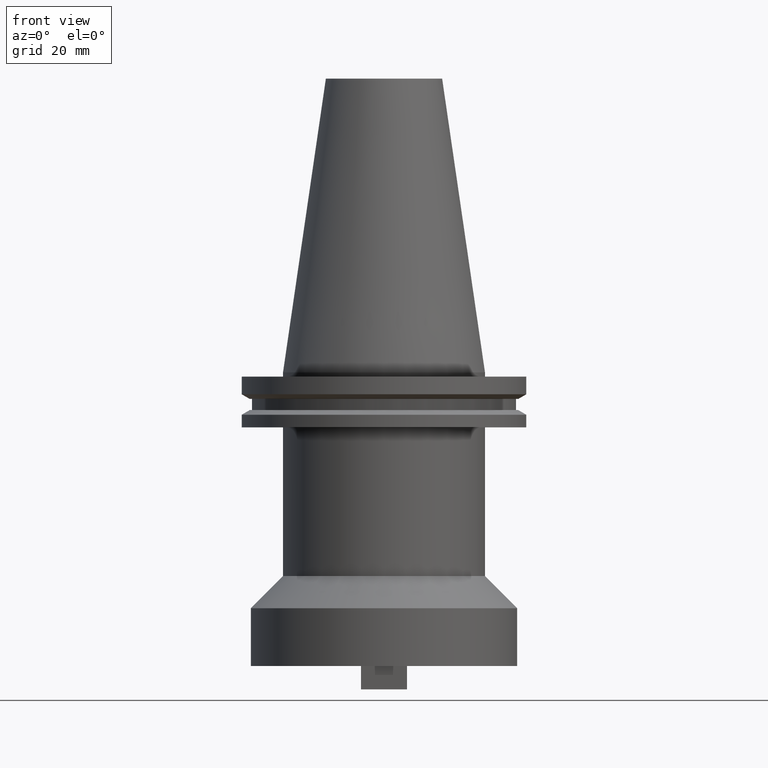
[diagram: clean part render]
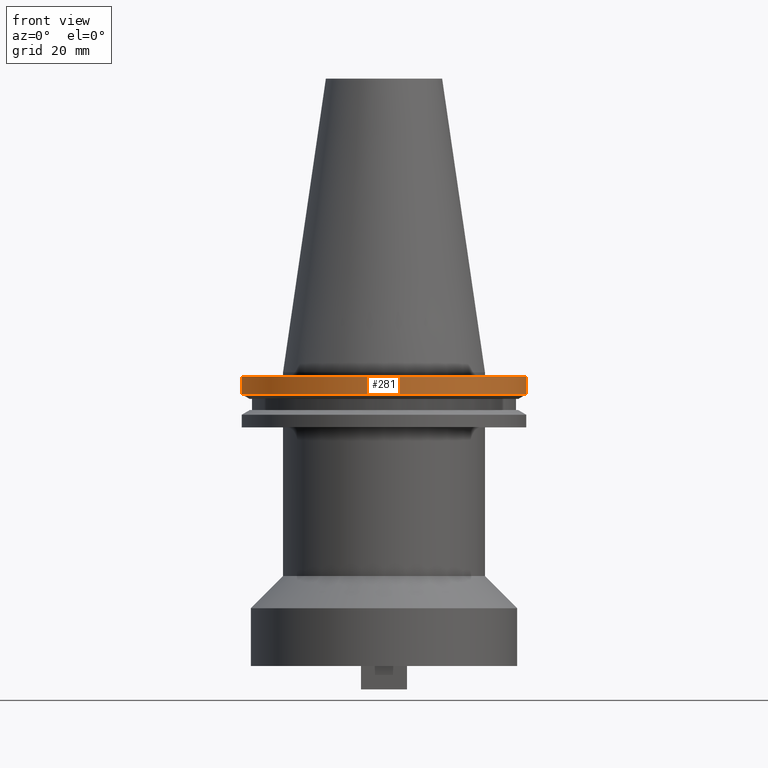
[diagram: same view with one face highlighted and labeled with its STEP entity id]
A machine part, front view. The second image highlights one B-rep face of the part: STEP entity #281.
In plain terms, the highlighted cylindrical surface (partial cylindrical patch) has radius 49.215 mm, axis along (-0, -0, 1).
Its self-contained STEP definition (entity closure, byte-faithful):
#2 = DIRECTION ( 'NONE',  ( -0.000000000000000000, -0.000000000000000000, 1.000000000000000000 ) ) ;
#13 = EDGE_CURVE ( 'NONE', #582, #614, #744, .T. ) ;
#36 = VERTEX_POINT ( 'NONE', #1045 ) ;
#58 = CARTESIAN_POINT ( 'NONE',  ( -49.21500000000000341, 6.027099222003699404E-15, -7.602389855251287187 ) ) ;
#132 = CYLINDRICAL_SURFACE ( 'NONE', #678, 49.21499999999999631 ) ;
#139 = AXIS2_PLACEMENT_3D ( 'NONE', #257, #1029, #946 ) ;
#165 = DIRECTION ( 'NONE',  ( -0.000000000000000000, -0.000000000000000000, 1.000000000000000000 ) ) ;
#187 = ORIENTED_EDGE ( 'NONE', *, *, #13, .T. ) ;
#212 = DIRECTION ( 'NONE',  ( -0.000000000000000000, -0.000000000000000000, 1.000000000000000000 ) ) ;
#257 = CARTESIAN_POINT ( 'NONE',  ( 0.000000000000000000, 0.000000000000000000, -1.499999999999987566 ) ) ;
#278 = AXIS2_PLACEMENT_3D ( 'NONE', #334, #165, #671 ) ;
#281 = ADVANCED_FACE ( 'NONE', ( #989 ), #132, .T. ) ;
#334 = CARTESIAN_POINT ( 'NONE',  ( 0.000000000000000000, 0.000000000000000000, -7.602389855251287187 ) ) ;
#345 = VECTOR ( 'NONE', #2, 1000.000000000000000 ) ;
#356 = ORIENTED_EDGE ( 'NONE', *, *, #844, .T. ) ;
#379 = LINE ( 'NONE', #988, #860 ) ;
#421 = ORIENTED_EDGE ( 'NONE', *, *, #1044, .F. ) ;
#483 = EDGE_CURVE ( 'NONE', #582, #36, #528, .T. ) ;
#528 = LINE ( 'NONE', #628, #345 ) ;
#533 = DIRECTION ( 'NONE',  ( -0.000000000000000000, -0.000000000000000000, 1.000000000000000000 ) ) ;
#576 = ORIENTED_EDGE ( 'NONE', *, *, #483, .F. ) ;
#582 = VERTEX_POINT ( 'NONE', #58 ) ;
#599 = EDGE_LOOP ( 'NONE', ( #576, #187, #356, #421 ) ) ;
#614 = VERTEX_POINT ( 'NONE', #657 ) ;
#628 = CARTESIAN_POINT ( 'NONE',  ( -49.21499999999999631, 6.027099222003697826E-15, 101.5999999999999943 ) ) ;
#629 = CIRCLE ( 'NONE', #139, 49.21499999999999631 ) ;
#657 = CARTESIAN_POINT ( 'NONE',  ( 49.21500000000000341, 0.000000000000000000, -7.602389855251287187 ) ) ;
#671 = DIRECTION ( 'NONE',  ( 1.000000000000000000, 0.000000000000000000, 0.000000000000000000 ) ) ;
#678 = AXIS2_PLACEMENT_3D ( 'NONE', #717, #212, #1057 ) ;
#717 = CARTESIAN_POINT ( 'NONE',  ( 0.000000000000000000, 0.000000000000000000, 101.5999999999999943 ) ) ;
#744 = CIRCLE ( 'NONE', #278, 49.21500000000000341 ) ;
#844 = EDGE_CURVE ( 'NONE', #614, #859, #379, .T. ) ;
#859 = VERTEX_POINT ( 'NONE', #889 ) ;
#860 = VECTOR ( 'NONE', #533, 1000.000000000000000 ) ;
#889 = CARTESIAN_POINT ( 'NONE',  ( 49.21499999999999631, 0.000000000000000000, -1.499999999999987566 ) ) ;
#946 = DIRECTION ( 'NONE',  ( 1.000000000000000000, 0.000000000000000000, 0.000000000000000000 ) ) ;
#988 = CARTESIAN_POINT ( 'NONE',  ( 49.21499999999999631, 0.000000000000000000, 101.5999999999999943 ) ) ;
#989 = FACE_OUTER_BOUND ( 'NONE', #599, .T. ) ;
#1029 = DIRECTION ( 'NONE',  ( -0.000000000000000000, -0.000000000000000000, 1.000000000000000000 ) ) ;
#1044 = EDGE_CURVE ( 'NONE', #36, #859, #629, .T. ) ;
#1045 = CARTESIAN_POINT ( 'NONE',  ( -49.21499999999999631, 6.027099222003697826E-15, -1.499999999999987566 ) ) ;
#1057 = DIRECTION ( 'NONE',  ( 1.000000000000000000, 0.000000000000000000, 0.000000000000000000 ) ) ;